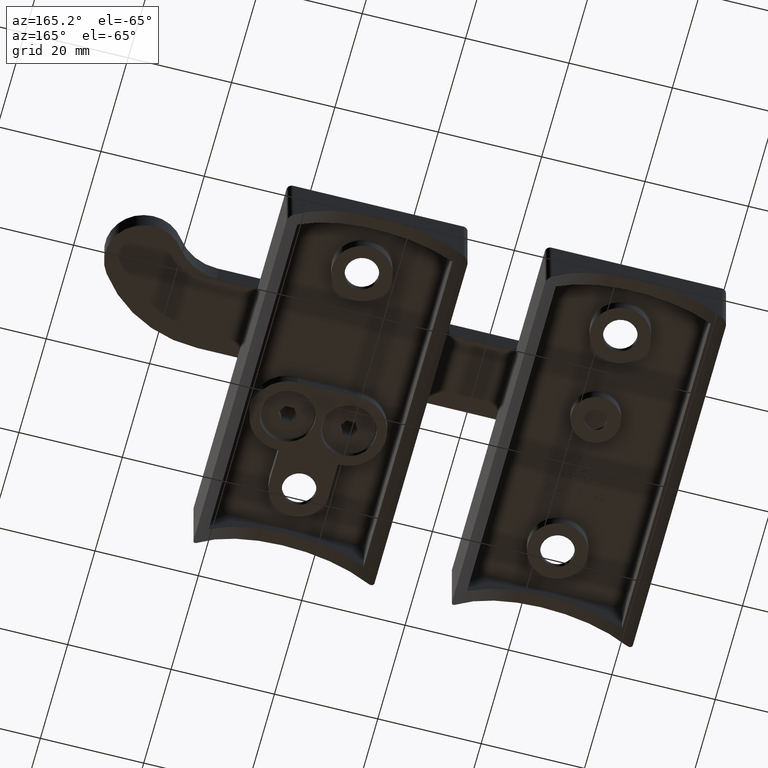
[diagram: clean part render]
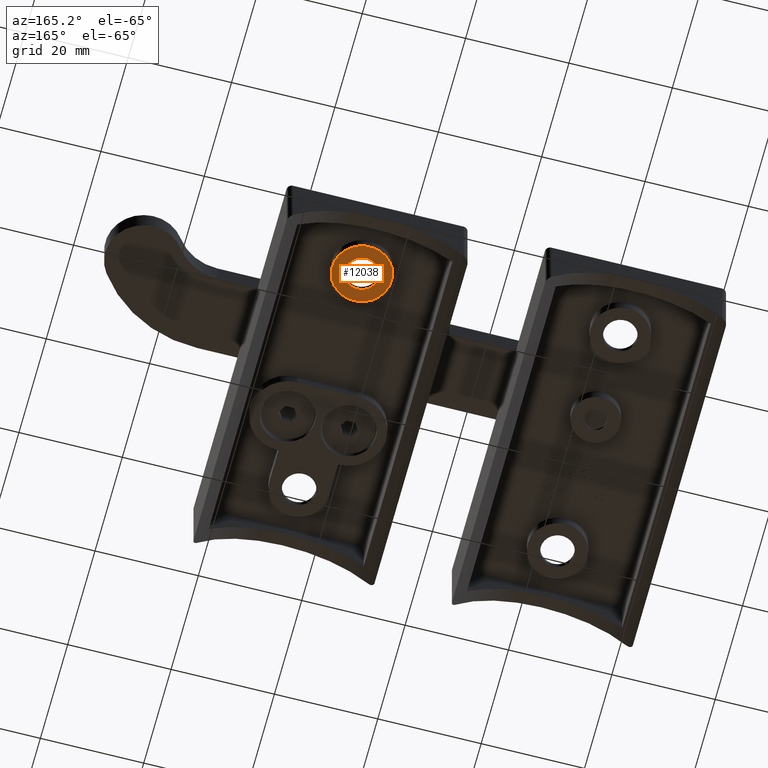
[diagram: same view with one face highlighted and labeled with its STEP entity id]
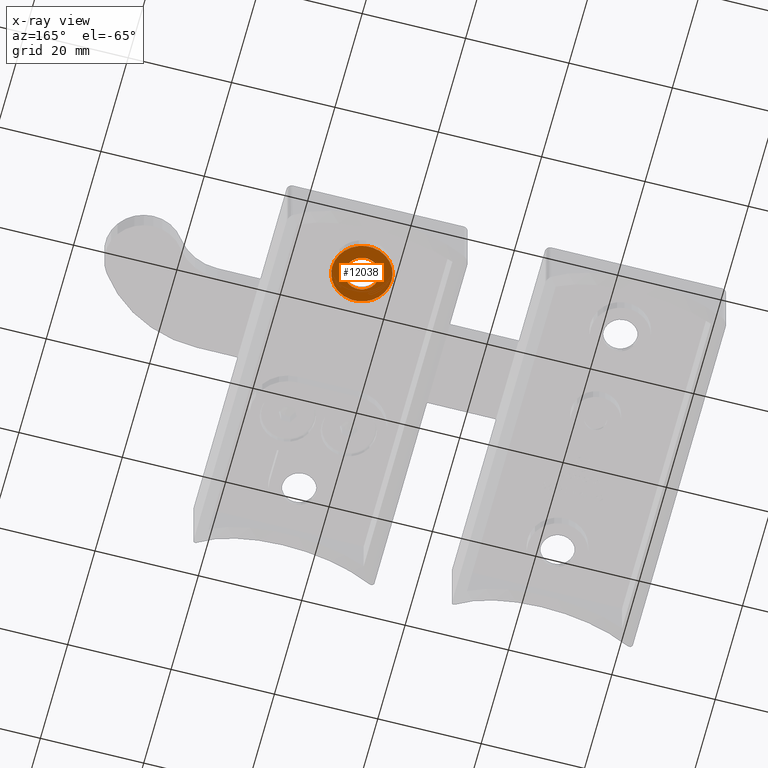
[diagram: x-ray of the same camera — body ghosted, the highlighted face saturated]
A machine part, auxiliary view. The second image highlights one B-rep face of the part: STEP entity #12038.
The next image is the same camera in x-ray: the body ghosted, the highlighted face saturated — about 0% of this face is hidden behind the body in this view.
In plain terms, the highlighted planar face has unit normal (0, 0, 1).
Its self-contained STEP definition (entity closure, byte-faithful):
#764 = DIRECTION ( 'NONE',  ( 0.000000000000000000, 0.000000000000000000, -1.000000000000000000 ) ) ;
#953 = CARTESIAN_POINT ( 'NONE',  ( 0.000000000000000000, 23.00000000000000000, -2.500000000000000000 ) ) ;
#1558 = ORIENTED_EDGE ( 'NONE', *, *, #13511, .T. ) ;
#2188 = DIRECTION ( 'NONE',  ( 1.000000000000000000, 0.000000000000000000, 0.000000000000000000 ) ) ;
#2354 = CIRCLE ( 'NONE', #16702, 3.250000000000007105 ) ;
#3017 = CIRCLE ( 'NONE', #3784, 5.750000000000000888 ) ;
#3784 = AXIS2_PLACEMENT_3D ( 'NONE', #953, #764, #5145 ) ;
#4001 = VERTEX_POINT ( 'NONE', #18747 ) ;
#5145 = DIRECTION ( 'NONE',  ( -1.000000000000000000, 0.000000000000000000, 0.000000000000000000 ) ) ;
#8873 = EDGE_LOOP ( 'NONE', ( #15680 ) ) ;
#9004 = EDGE_LOOP ( 'NONE', ( #1558 ) ) ;
#11006 = DIRECTION ( 'NONE',  ( -0.000000000000000000, 0.000000000000000000, 1.000000000000000000 ) ) ;
#12038 = ADVANCED_FACE ( 'NONE', ( #15586, #15136 ), #15211, .F. ) ;
#12473 = DIRECTION ( 'NONE',  ( -0.000000000000000000, 0.000000000000000000, 1.000000000000000000 ) ) ;
#13511 = EDGE_CURVE ( 'NONE', #18084, #18084, #2354, .T. ) ;
#14094 = CARTESIAN_POINT ( 'NONE',  ( 0.000000000000000000, 23.00000000000000000, -2.500000000000000000 ) ) ;
#14461 = EDGE_CURVE ( 'NONE', #4001, #4001, #3017, .T. ) ;
#14971 = AXIS2_PLACEMENT_3D ( 'NONE', #18304, #11006, #2188 ) ;
#15136 = FACE_OUTER_BOUND ( 'NONE', #8873, .T. ) ;
#15211 = PLANE ( 'NONE',  #14971 ) ;
#15424 = DIRECTION ( 'NONE',  ( 1.000000000000000000, 0.000000000000000000, 0.000000000000000000 ) ) ;
#15586 = FACE_BOUND ( 'NONE', #9004, .T. ) ;
#15680 = ORIENTED_EDGE ( 'NONE', *, *, #14461, .T. ) ;
#15929 = CARTESIAN_POINT ( 'NONE',  ( 3.250000000000007105, 23.00000000000000000, -2.500000000000000000 ) ) ;
#16702 = AXIS2_PLACEMENT_3D ( 'NONE', #14094, #12473, #15424 ) ;
#18084 = VERTEX_POINT ( 'NONE', #15929 ) ;
#18304 = CARTESIAN_POINT ( 'NONE',  ( 0.000000000000000000, 0.000000000000000000, -2.500000000000000000 ) ) ;
#18747 = CARTESIAN_POINT ( 'NONE',  ( -5.750000000000000888, 23.00000000000000000, -2.500000000000000000 ) ) ;